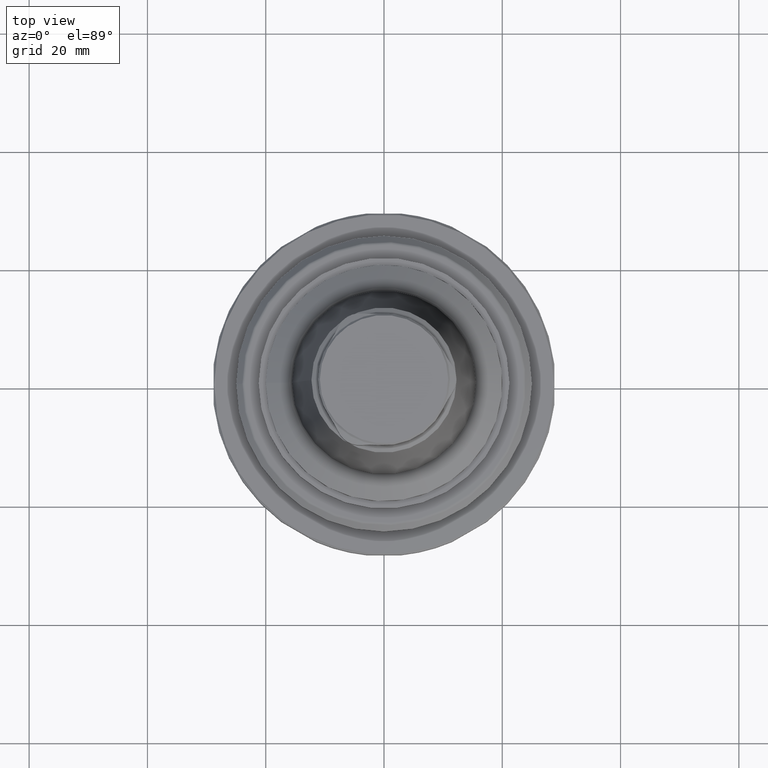
[diagram: clean part render]
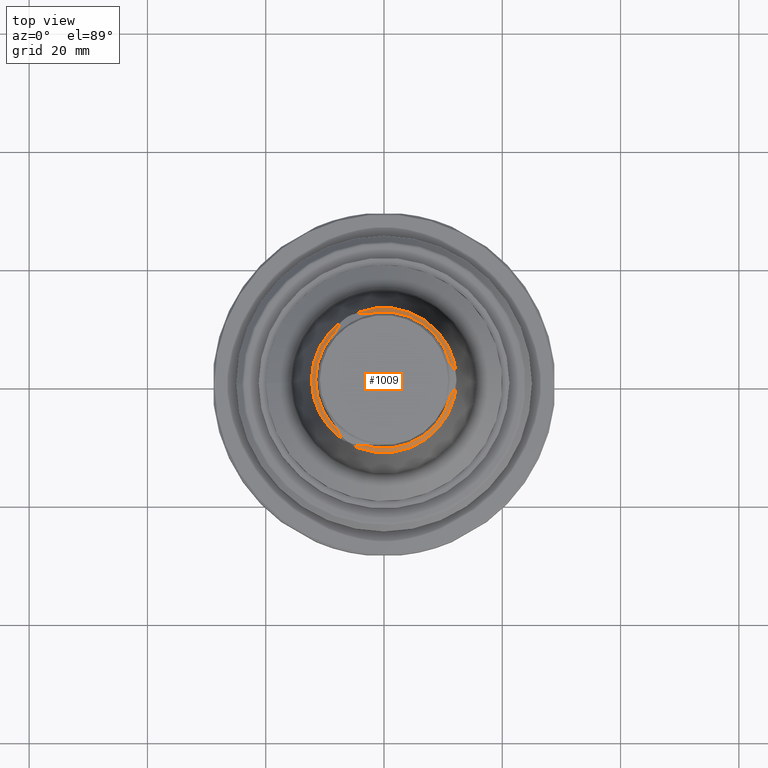
[diagram: same view with one face highlighted and labeled with its STEP entity id]
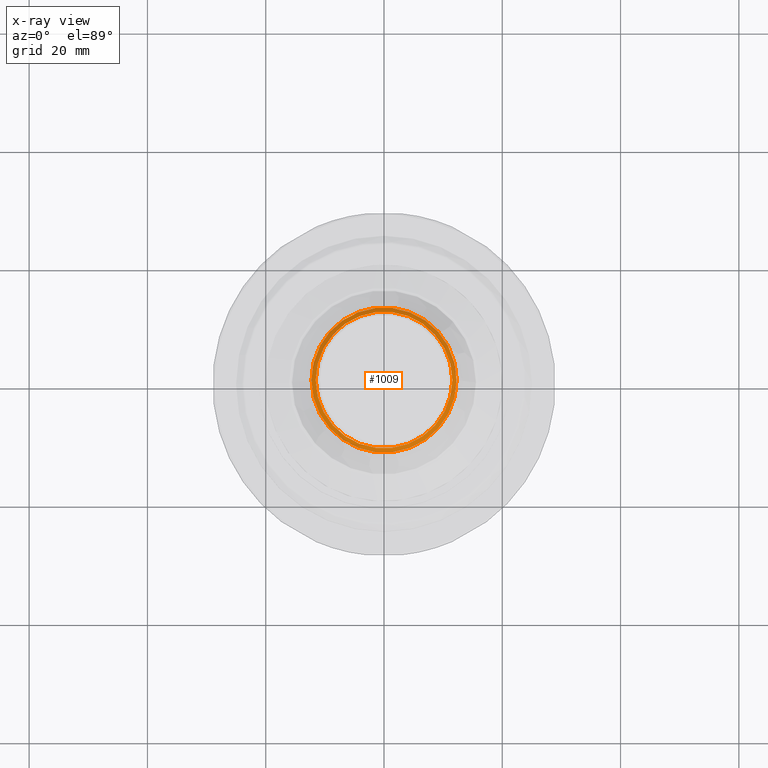
[diagram: x-ray of the same camera — body ghosted, the highlighted face saturated]
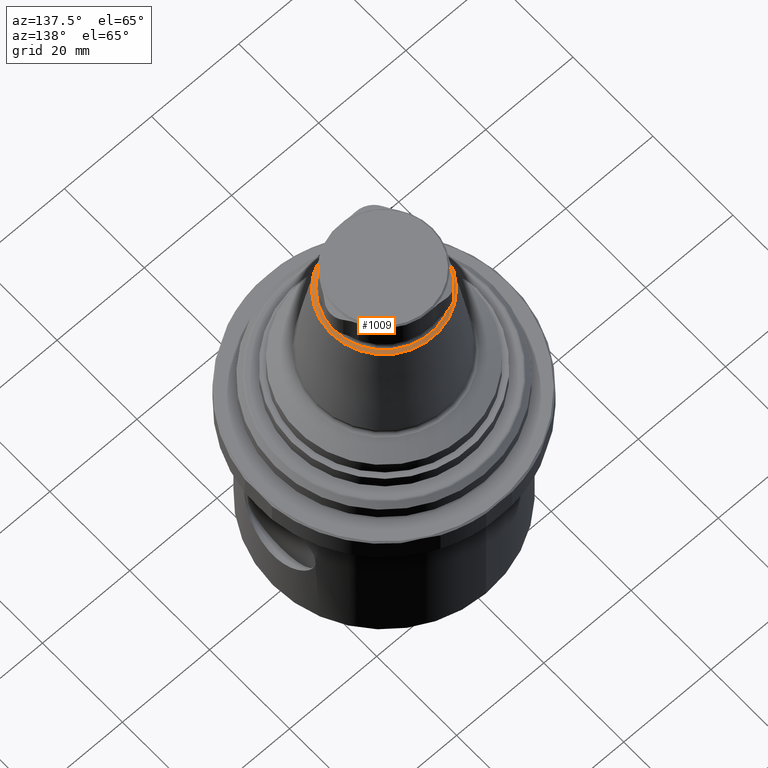
[diagram: same view with one face highlighted and labeled with its STEP entity id]
A machine part, top view. The second image highlights one B-rep face of the part: STEP entity #1009.
The next image is the same camera in x-ray: the body ghosted, the highlighted face saturated — about 0% of this face is hidden behind the body in this view.
A second angle (auxiliary view) of the same face is appended — the face is thin or edge-on in the first view.
In plain terms, the highlighted conical surface has half-angle 60 deg.
Its self-contained STEP definition (entity closure, byte-faithful):
#154=CONICAL_SURFACE('',#1137,12.2706905250473,1.0471975511966);
#388=ORIENTED_EDGE('',*,*,#547,.T.);
#389=ORIENTED_EDGE('',*,*,#548,.F.);
#547=EDGE_CURVE('',#648,#648,#711,.T.);
#548=EDGE_CURVE('',#649,#649,#712,.T.);
#648=VERTEX_POINT('',#1835);
#649=VERTEX_POINT('',#1838);
#711=CIRCLE('',#1136,11.55);
#712=CIRCLE('',#1138,12.2706905250473);
#795=EDGE_LOOP('',(#388));
#796=EDGE_LOOP('',(#389));
#895=FACE_BOUND('',#795,.T.);
#896=FACE_BOUND('',#796,.T.);
#1009=ADVANCED_FACE('',(#895,#896),#154,.T.);
#1136=AXIS2_PLACEMENT_3D('',#1834,#1393,#1394);
#1137=AXIS2_PLACEMENT_3D('',#1836,#1395,#1396);
#1138=AXIS2_PLACEMENT_3D('',#1837,#1397,#1398);
#1393=DIRECTION('',(-4.20111564119382E-16,-8.51929323965368E-24,-1.));
#1394=DIRECTION('',(-1.,9.77164313006873E-16,4.20111561806759E-16));
#1395=DIRECTION('',(-4.20111564119382E-16,-8.51929323965368E-24,-1.));
#1396=DIRECTION('',(-1.,9.77164313006873E-16,4.20111561806759E-16));
#1397=DIRECTION('',(-4.20111564119382E-16,-8.51929323965368E-24,-1.));
#1398=DIRECTION('',(-1.,9.77164313006873E-16,4.20111561806759E-16));
#1834=CARTESIAN_POINT('',(-7.13460220486001E-14,-9.81645348193806E-14,38.9650908686385));
#1835=CARTESIAN_POINT('',(-11.5500000000001,-8.68782870041512E-14,38.9650908686385));
#1836=CARTESIAN_POINT('',(-7.15208266342396E-14,-9.81645348229254E-14,38.549));
#1837=CARTESIAN_POINT('',(-7.15208266342396E-14,-9.81645348229254E-14,38.549));
#1838=CARTESIAN_POINT('',(-12.2706905250474,-8.61740539458976E-14,38.549));